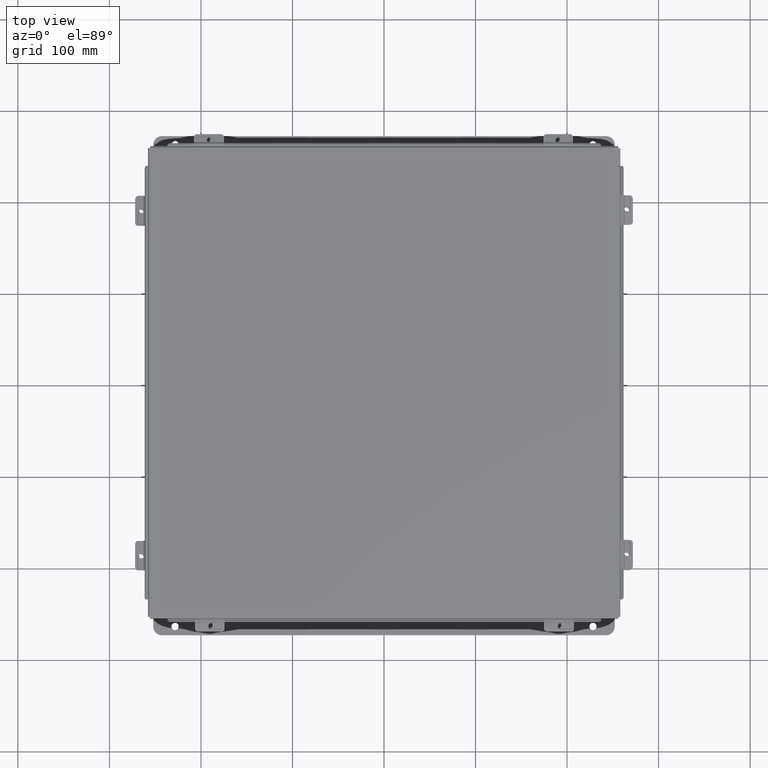
[diagram: clean part render]
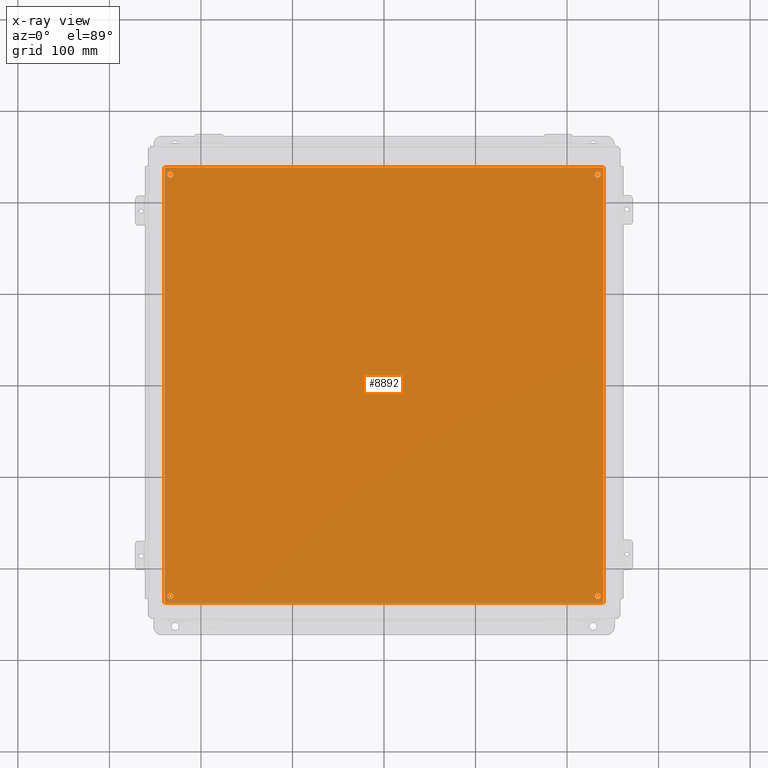
[diagram: x-ray — body ghosted, one internal face saturated and labeled with its STEP entity id]
A machine part, top view, then the same camera in x-ray: the body is ghosted and one INTERNAL B-rep face — a face not visible from any outside direction — is saturated and labeled: STEP entity #8892.
In plain terms, the highlighted planar face has unit normal (0, 0, -1).
Its self-contained STEP definition (entity closure, byte-faithful):
#10 = DIRECTION ( 'NONE',  ( -1.000000000000000000, 0.0000000000000000000, 0.0000000000000000000 ) ) ;
#77 = CARTESIAN_POINT ( 'NONE',  ( 18.87500000000000000, 0.0000000000000000000, -0.07470000000000003000 ) ) ;
#85 = AXIS2_PLACEMENT_3D ( 'NONE', #4101, #3444, #3405 ) ;
#112 = CARTESIAN_POINT ( 'NONE',  ( 0.0000000000000000000, 0.0000000000000000000, -0.07470000000000003000 ) ) ;
#171 = DIRECTION ( 'NONE',  ( -1.000000000000000000, 0.0000000000000000000, -0.0000000000000000000 ) ) ;
#193 = FACE_BOUND ( 'NONE', #8271, .T. ) ;
#446 = AXIS2_PLACEMENT_3D ( 'NONE', #3398, #7084, #5392 ) ;
#684 = VERTEX_POINT ( 'NONE', #1047 ) ;
#776 = CARTESIAN_POINT ( 'NONE',  ( 18.62499999999999600, 18.43799999999999900, -0.07470000000000003000 ) ) ;
#888 = CARTESIAN_POINT ( 'NONE',  ( 0.0000000000000000000, 18.75000000000000000, -0.07470000000000003000 ) ) ;
#891 = DIRECTION ( 'NONE',  ( 1.000000000000000000, 0.0000000000000000000, 0.0000000000000000000 ) ) ;
#892 = ORIENTED_EDGE ( 'NONE', *, *, #5662, .T. ) ;
#1019 = EDGE_CURVE ( 'NONE', #5977, #6104, #5231, .T. ) ;
#1047 = CARTESIAN_POINT ( 'NONE',  ( 18.74999999999999600, 18.43799999999999900, -0.07470000000000003000 ) ) ;
#1090 = CIRCLE ( 'NONE', #6839, 0.1249999999999993500 ) ;
#1091 = CIRCLE ( 'NONE', #6713, 0.1249999999999993500 ) ;
#1095 = CARTESIAN_POINT ( 'NONE',  ( 0.0000000000000000000, 0.0000000000000000000, -0.07470000000000003000 ) ) ;
#1131 = VECTOR ( 'NONE', #3634, 39.37007874015748100 ) ;
#1602 = DIRECTION ( 'NONE',  ( -0.0000000000000000000, -0.0000000000000000000, 1.000000000000000000 ) ) ;
#1700 = AXIS2_PLACEMENT_3D ( 'NONE', #3960, #9224, #4728 ) ;
#2237 = FACE_BOUND ( 'NONE', #8670, .T. ) ;
#2252 = DIRECTION ( 'NONE',  ( 0.0000000000000000000, 1.000000000000000000, 0.0000000000000000000 ) ) ;
#2302 = VECTOR ( 'NONE', #2252, 39.37007874015748100 ) ;
#2312 = EDGE_CURVE ( 'NONE', #684, #7011, #8192, .T. ) ;
#2320 = DIRECTION ( 'NONE',  ( -0.0000000000000000000, -0.0000000000000000000, 1.000000000000000000 ) ) ;
#2714 = LINE ( 'NONE', #112, #6525 ) ;
#2790 = EDGE_CURVE ( 'NONE', #7397, #8274, #7285, .T. ) ;
#2937 = DIRECTION ( 'NONE',  ( -0.0000000000000000000, -0.0000000000000000000, 1.000000000000000000 ) ) ;
#3015 = CARTESIAN_POINT ( 'NONE',  ( 0.3749999999999998300, 18.43799999999999900, -0.07470000000000003000 ) ) ;
#3128 = EDGE_CURVE ( 'NONE', #3649, #3605, #9310, .T. ) ;
#3332 = LINE ( 'NONE', #7546, #7120 ) ;
#3339 = CARTESIAN_POINT ( 'NONE',  ( 18.50000000000000400, 0.3120000000000047700, -0.07470000000000003000 ) ) ;
#3398 = CARTESIAN_POINT ( 'NONE',  ( 0.2500000000000020000, 0.3120000000000015000, -0.07470000000000003000 ) ) ;
#3405 = DIRECTION ( 'NONE',  ( -1.000000000000000000, 0.0000000000000000000, 0.0000000000000000000 ) ) ;
#3444 = DIRECTION ( 'NONE',  ( -0.0000000000000000000, -0.0000000000000000000, 1.000000000000000000 ) ) ;
#3605 = VERTEX_POINT ( 'NONE', #9803 ) ;
#3634 = DIRECTION ( 'NONE',  ( -0.0000000000000000000, -1.000000000000000000, -0.0000000000000000000 ) ) ;
#3649 = VERTEX_POINT ( 'NONE', #4266 ) ;
#3680 = ORIENTED_EDGE ( 'NONE', *, *, #9518, .T. ) ;
#3960 = CARTESIAN_POINT ( 'NONE',  ( 0.2499999999999998100, 18.43799999999999900, -0.07470000000000003000 ) ) ;
#4016 = ORIENTED_EDGE ( 'NONE', *, *, #2790, .T. ) ;
#4101 = CARTESIAN_POINT ( 'NONE',  ( 18.62499999999999600, 18.43799999999999900, -0.07470000000000003000 ) ) ;
#4170 = CIRCLE ( 'NONE', #1700, 0.1250000000000000000 ) ;
#4266 = CARTESIAN_POINT ( 'NONE',  ( 0.3750000000000020000, 0.3120000000000015000, -0.07470000000000003000 ) ) ;
#4333 = LINE ( 'NONE', #7558, #2302 ) ;
#4346 = DIRECTION ( 'NONE',  ( -0.0000000000000000000, -0.0000000000000000000, 1.000000000000000000 ) ) ;
#4441 = EDGE_CURVE ( 'NONE', #3605, #3649, #8896, .T. ) ;
#4728 = DIRECTION ( 'NONE',  ( -1.000000000000000000, 0.0000000000000000000, 0.0000000000000000000 ) ) ;
#4782 = DIRECTION ( 'NONE',  ( 0.0000000000000000000, 0.0000000000000000000, -1.000000000000000000 ) ) ;
#4859 = EDGE_LOOP ( 'NONE', ( #4016, #3680 ) ) ;
#5063 = EDGE_LOOP ( 'NONE', ( #8738, #5315, #6420, #7442 ) ) ;
#5231 = LINE ( 'NONE', #1095, #1131 ) ;
#5264 = VERTEX_POINT ( 'NONE', #77 ) ;
#5315 = ORIENTED_EDGE ( 'NONE', *, *, #7901, .F. ) ;
#5392 = DIRECTION ( 'NONE',  ( -1.000000000000000000, 0.0000000000000000000, 0.0000000000000000000 ) ) ;
#5506 = PLANE ( 'NONE',  #5542 ) ;
#5542 = AXIS2_PLACEMENT_3D ( 'NONE', #9279, #4782, #171 ) ;
#5662 = EDGE_CURVE ( 'NONE', #7011, #684, #1090, .T. ) ;
#5975 = EDGE_LOOP ( 'NONE', ( #7799, #8332 ) ) ;
#5977 = VERTEX_POINT ( 'NONE', #888 ) ;
#6000 = VERTEX_POINT ( 'NONE', #3015 ) ;
#6045 = CARTESIAN_POINT ( 'NONE',  ( 18.49999999999999600, 18.43799999999999900, -0.07470000000000003000 ) ) ;
#6104 = VERTEX_POINT ( 'NONE', #8213 ) ;
#6124 = ORIENTED_EDGE ( 'NONE', *, *, #2312, .T. ) ;
#6294 = FACE_BOUND ( 'NONE', #5975, .T. ) ;
#6391 = ORIENTED_EDGE ( 'NONE', *, *, #8101, .T. ) ;
#6419 = AXIS2_PLACEMENT_3D ( 'NONE', #7483, #2937, #8236 ) ;
#6420 = ORIENTED_EDGE ( 'NONE', *, *, #9362, .F. ) ;
#6525 = VECTOR ( 'NONE', #891, 39.37007874015748100 ) ;
#6599 = AXIS2_PLACEMENT_3D ( 'NONE', #7463, #2320, #10 ) ;
#6713 = AXIS2_PLACEMENT_3D ( 'NONE', #8866, #4346, #9642 ) ;
#6839 = AXIS2_PLACEMENT_3D ( 'NONE', #776, #1602, #9267 ) ;
#6862 = DIRECTION ( 'NONE',  ( -0.0000000000000000000, -0.0000000000000000000, 1.000000000000000000 ) ) ;
#7011 = VERTEX_POINT ( 'NONE', #6045 ) ;
#7084 = DIRECTION ( 'NONE',  ( -0.0000000000000000000, -0.0000000000000000000, 1.000000000000000000 ) ) ;
#7120 = VECTOR ( 'NONE', #8320, 39.37007874015748100 ) ;
#7285 = CIRCLE ( 'NONE', #7651, 0.1249999999999993500 ) ;
#7368 = DIRECTION ( 'NONE',  ( -1.000000000000000000, 0.0000000000000000000, 0.0000000000000000000 ) ) ;
#7397 = VERTEX_POINT ( 'NONE', #7942 ) ;
#7442 = ORIENTED_EDGE ( 'NONE', *, *, #8813, .F. ) ;
#7463 = CARTESIAN_POINT ( 'NONE',  ( 0.2500000000000020000, 0.3120000000000015000, -0.07470000000000003000 ) ) ;
#7483 = CARTESIAN_POINT ( 'NONE',  ( 0.2499999999999998100, 18.43799999999999900, -0.07470000000000003000 ) ) ;
#7546 = CARTESIAN_POINT ( 'NONE',  ( 0.0000000000000000000, 18.75000000000000000, -0.07470000000000003000 ) ) ;
#7558 = CARTESIAN_POINT ( 'NONE',  ( 18.87500000000000000, 0.0000000000000000000, -0.07470000000000003000 ) ) ;
#7621 = CARTESIAN_POINT ( 'NONE',  ( 0.1249999999999997900, 18.43799999999999900, -0.07470000000000003000 ) ) ;
#7651 = AXIS2_PLACEMENT_3D ( 'NONE', #8378, #6862, #7368 ) ;
#7799 = ORIENTED_EDGE ( 'NONE', *, *, #3128, .T. ) ;
#7838 = EDGE_CURVE ( 'NONE', #6000, #7958, #9817, .T. ) ;
#7901 = EDGE_CURVE ( 'NONE', #8855, #5977, #3332, .T. ) ;
#7942 = CARTESIAN_POINT ( 'NONE',  ( 18.75000000000000000, 0.3120000000000047700, -0.07470000000000003000 ) ) ;
#7958 = VERTEX_POINT ( 'NONE', #7621 ) ;
#8049 = FACE_OUTER_BOUND ( 'NONE', #5063, .T. ) ;
#8101 = EDGE_CURVE ( 'NONE', #7958, #6000, #4170, .T. ) ;
#8192 = CIRCLE ( 'NONE', #85, 0.1249999999999993500 ) ;
#8213 = CARTESIAN_POINT ( 'NONE',  ( 0.0000000000000000000, 0.0000000000000000000, -0.07470000000000003000 ) ) ;
#8236 = DIRECTION ( 'NONE',  ( -1.000000000000000000, 0.0000000000000000000, 0.0000000000000000000 ) ) ;
#8271 = EDGE_LOOP ( 'NONE', ( #9763, #6391 ) ) ;
#8274 = VERTEX_POINT ( 'NONE', #3339 ) ;
#8320 = DIRECTION ( 'NONE',  ( -1.000000000000000000, -0.0000000000000000000, -0.0000000000000000000 ) ) ;
#8332 = ORIENTED_EDGE ( 'NONE', *, *, #4441, .T. ) ;
#8378 = CARTESIAN_POINT ( 'NONE',  ( 18.62500000000000000, 0.3120000000000047700, -0.07470000000000003000 ) ) ;
#8487 = CARTESIAN_POINT ( 'NONE',  ( 18.87500000000000000, 18.75000000000000000, -0.07470000000000003000 ) ) ;
#8526 = FACE_BOUND ( 'NONE', #4859, .T. ) ;
#8670 = EDGE_LOOP ( 'NONE', ( #6124, #892 ) ) ;
#8738 = ORIENTED_EDGE ( 'NONE', *, *, #1019, .F. ) ;
#8813 = EDGE_CURVE ( 'NONE', #6104, #5264, #2714, .T. ) ;
#8855 = VERTEX_POINT ( 'NONE', #8487 ) ;
#8866 = CARTESIAN_POINT ( 'NONE',  ( 18.62500000000000000, 0.3120000000000047700, -0.07470000000000003000 ) ) ;
#8892 = ADVANCED_FACE ( 'NONE', ( #6294, #8526, #2237, #193, #8049 ), #5506, .T. ) ;
#8896 = CIRCLE ( 'NONE', #446, 0.1250000000000000600 ) ;
#9224 = DIRECTION ( 'NONE',  ( -0.0000000000000000000, -0.0000000000000000000, 1.000000000000000000 ) ) ;
#9267 = DIRECTION ( 'NONE',  ( -1.000000000000000000, 0.0000000000000000000, 0.0000000000000000000 ) ) ;
#9279 = CARTESIAN_POINT ( 'NONE',  ( 0.0000000000000000000, 0.0000000000000000000, -0.07470000000000003000 ) ) ;
#9310 = CIRCLE ( 'NONE', #6599, 0.1250000000000000600 ) ;
#9362 = EDGE_CURVE ( 'NONE', #5264, #8855, #4333, .T. ) ;
#9518 = EDGE_CURVE ( 'NONE', #8274, #7397, #1091, .T. ) ;
#9642 = DIRECTION ( 'NONE',  ( -1.000000000000000000, 0.0000000000000000000, 0.0000000000000000000 ) ) ;
#9763 = ORIENTED_EDGE ( 'NONE', *, *, #7838, .T. ) ;
#9803 = CARTESIAN_POINT ( 'NONE',  ( 0.1250000000000019200, 0.3120000000000015000, -0.07470000000000003000 ) ) ;
#9817 = CIRCLE ( 'NONE', #6419, 0.1250000000000000000 ) ;